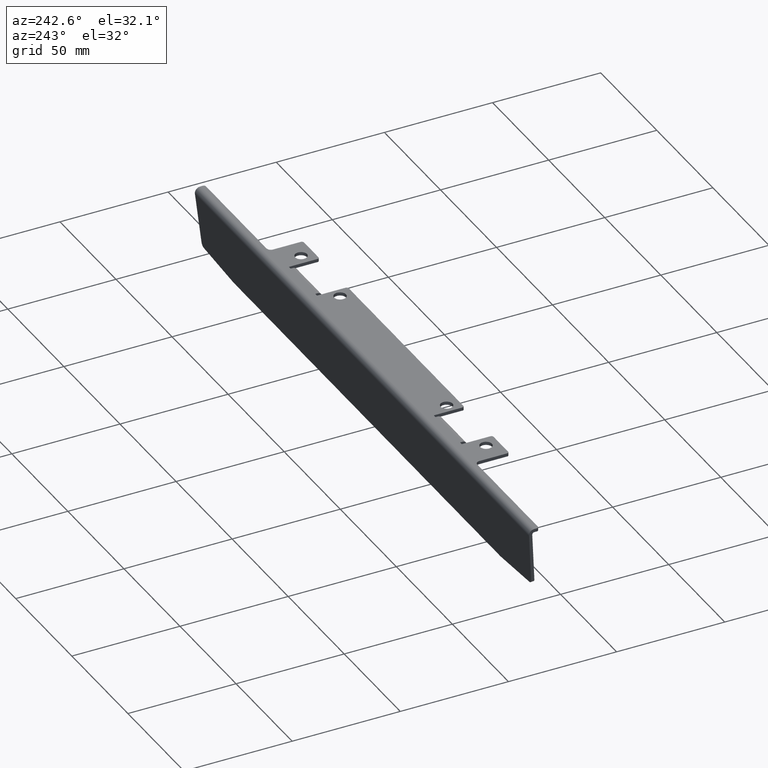
[diagram: clean part render]
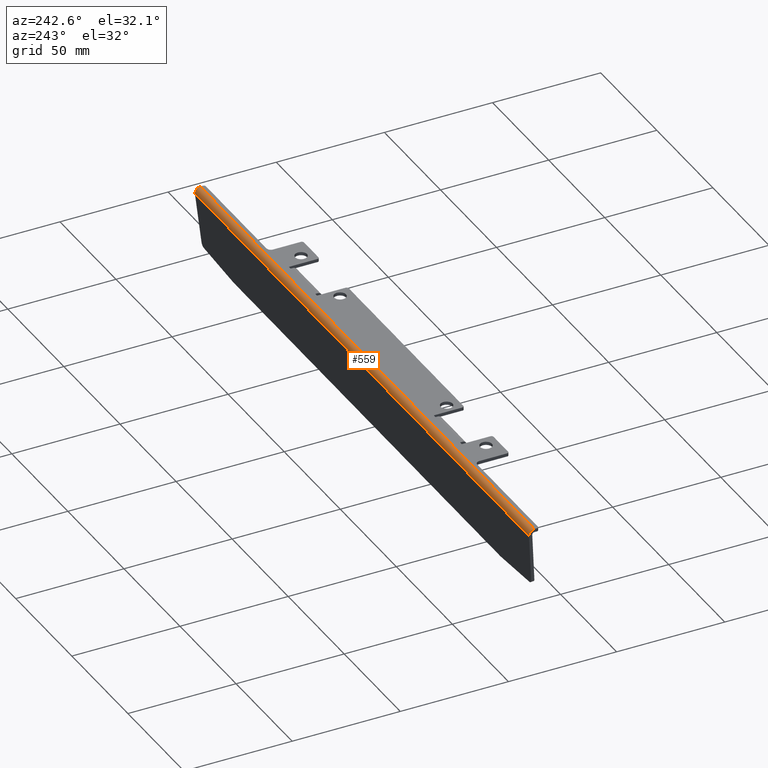
[diagram: same view with one face highlighted and labeled with its STEP entity id]
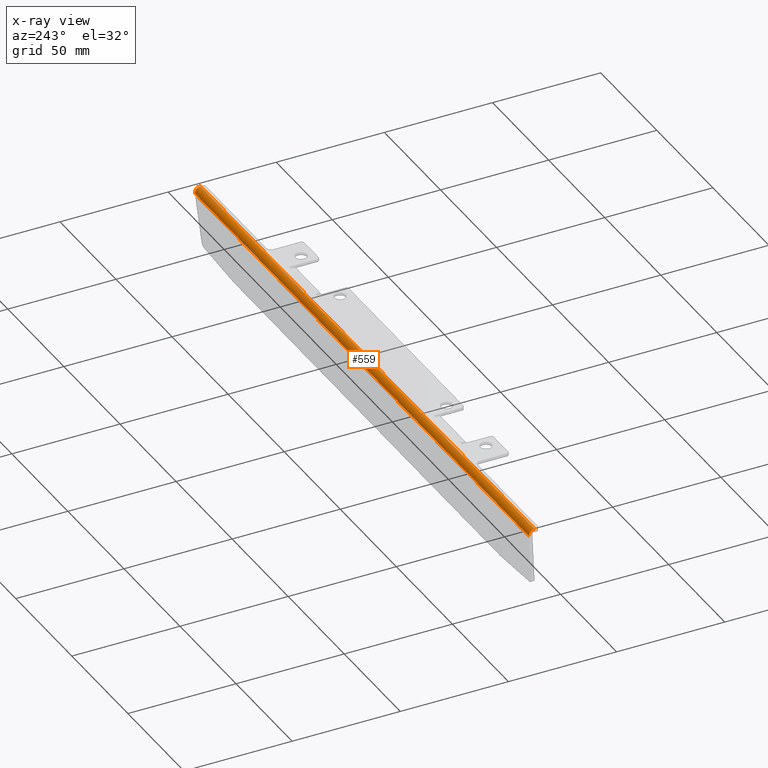
[diagram: x-ray of the same camera — body ghosted, the highlighted face saturated]
A machine part, auxiliary view. The second image highlights one B-rep face of the part: STEP entity #559.
The next image is the same camera in x-ray: the body ghosted, the highlighted face saturated — about 0% of this face is hidden behind the body in this view.
In plain terms, the highlighted cylindrical surface (edge-blend (fillet) strip) has radius 2.5 mm, axis along (1, 0, 0).
Its self-contained STEP definition (entity closure, byte-faithful):
#51 = LINE ( 'NONE', #87, #1120 ) ;
#87 = CARTESIAN_POINT ( 'NONE',  ( -149.0000000000000000, 14.06244609240786800, -2.717889356869136900 ) ) ;
#129 = CARTESIAN_POINT ( 'NONE',  ( -149.0000000000000000, 11.57195934717849500, 0.0000000000000000000 ) ) ;
#138 = ORIENTED_EDGE ( 'NONE', *, *, #1152, .F. ) ;
#207 = AXIS2_PLACEMENT_3D ( 'NONE', #939, #2065, #1135 ) ;
#472 = CARTESIAN_POINT ( 'NONE',  ( -149.0000000000000000, 11.57195934717849500, 0.0000000000000000000 ) ) ;
#497 = ORIENTED_EDGE ( 'NONE', *, *, #1751, .F. ) ;
#516 = DIRECTION ( 'NONE',  ( -1.000000000000000000, -0.0000000000000000000, -0.0000000000000000000 ) ) ;
#559 = ADVANCED_FACE ( 'NONE', ( #2100 ), #2223, .T. ) ;
#686 = AXIS2_PLACEMENT_3D ( 'NONE', #1964, #2144, #1424 ) ;
#939 = CARTESIAN_POINT ( 'NONE',  ( -149.0000000000000000, 11.57195934717849700, -2.500000000000000400 ) ) ;
#1032 = DIRECTION ( 'NONE',  ( 0.0000000000000000000, 0.0000000000000000000, -1.000000000000000000 ) ) ;
#1120 = VECTOR ( 'NONE', #1251, 1000.000000000000000 ) ;
#1135 = DIRECTION ( 'NONE',  ( 0.0000000000000000000, 2.081668171172166500E-015, -1.000000000000000000 ) ) ;
#1148 = VECTOR ( 'NONE', #516, 1000.000000000000000 ) ;
#1151 = CARTESIAN_POINT ( 'NONE',  ( 148.9999999999999700, 14.06244609240786600, -2.717889356869138700 ) ) ;
#1152 = EDGE_CURVE ( 'NONE', #2280, #1817, #1823, .T. ) ;
#1251 = DIRECTION ( 'NONE',  ( -1.000000000000000000, 1.010844195836927400E-018, 1.155400202835925200E-017 ) ) ;
#1378 = EDGE_CURVE ( 'NONE', #1958, #2334, #2266, .T. ) ;
#1399 = DIRECTION ( 'NONE',  ( 1.000000000000000000, 0.0000000000000000000, 0.0000000000000000000 ) ) ;
#1424 = DIRECTION ( 'NONE',  ( 0.0000000000000000000, 0.9961946980917458800, -0.08715574274765487700 ) ) ;
#1554 = ORIENTED_EDGE ( 'NONE', *, *, #1565, .T. ) ;
#1565 = EDGE_CURVE ( 'NONE', #1958, #1817, #51, .T. ) ;
#1613 = CARTESIAN_POINT ( 'NONE',  ( 148.9999999999999400, 11.57195934717849700, 1.301042606982605300E-015 ) ) ;
#1652 = LINE ( 'NONE', #129, #1148 ) ;
#1671 = EDGE_LOOP ( 'NONE', ( #497, #1847, #1554, #138 ) ) ;
#1687 = AXIS2_PLACEMENT_3D ( 'NONE', #1959, #1399, #1032 ) ;
#1751 = EDGE_CURVE ( 'NONE', #2334, #2280, #1652, .T. ) ;
#1817 = VERTEX_POINT ( 'NONE', #2212 ) ;
#1823 = CIRCLE ( 'NONE', #207, 2.500000000000002200 ) ;
#1847 = ORIENTED_EDGE ( 'NONE', *, *, #1378, .F. ) ;
#1958 = VERTEX_POINT ( 'NONE', #1151 ) ;
#1959 = CARTESIAN_POINT ( 'NONE',  ( 148.9999999999999400, 11.57195934717849700, -2.500000000000000400 ) ) ;
#1964 = CARTESIAN_POINT ( 'NONE',  ( 149.0000000000000000, 11.57195934717849700, -2.500000000000000400 ) ) ;
#2065 = DIRECTION ( 'NONE',  ( -1.000000000000000000, -0.0000000000000000000, -0.0000000000000000000 ) ) ;
#2100 = FACE_OUTER_BOUND ( 'NONE', #1671, .T. ) ;
#2144 = DIRECTION ( 'NONE',  ( 1.000000000000000000, 0.0000000000000000000, 0.0000000000000000000 ) ) ;
#2212 = CARTESIAN_POINT ( 'NONE',  ( -149.0000000000000600, 14.06244609240786600, -2.717889356869137800 ) ) ;
#2223 = CYLINDRICAL_SURFACE ( 'NONE', #686, 2.500000000000001300 ) ;
#2266 = CIRCLE ( 'NONE', #1687, 2.500000000000002200 ) ;
#2280 = VERTEX_POINT ( 'NONE', #472 ) ;
#2334 = VERTEX_POINT ( 'NONE', #1613 ) ;